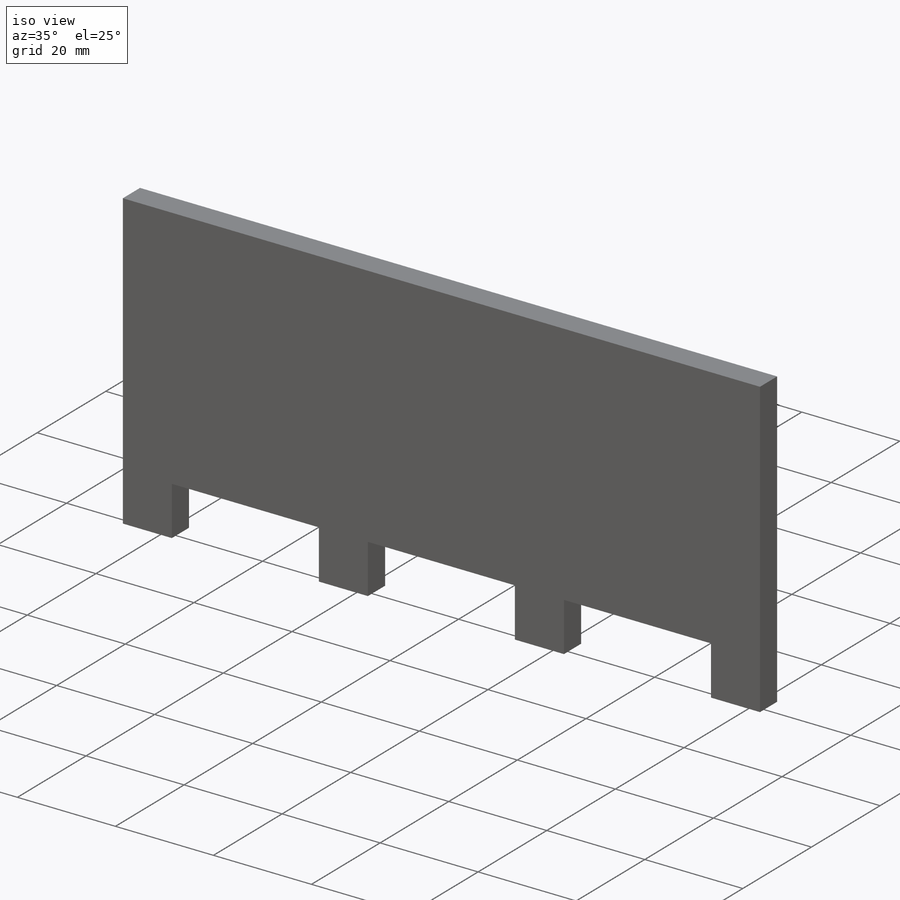
[diagram: iso view]
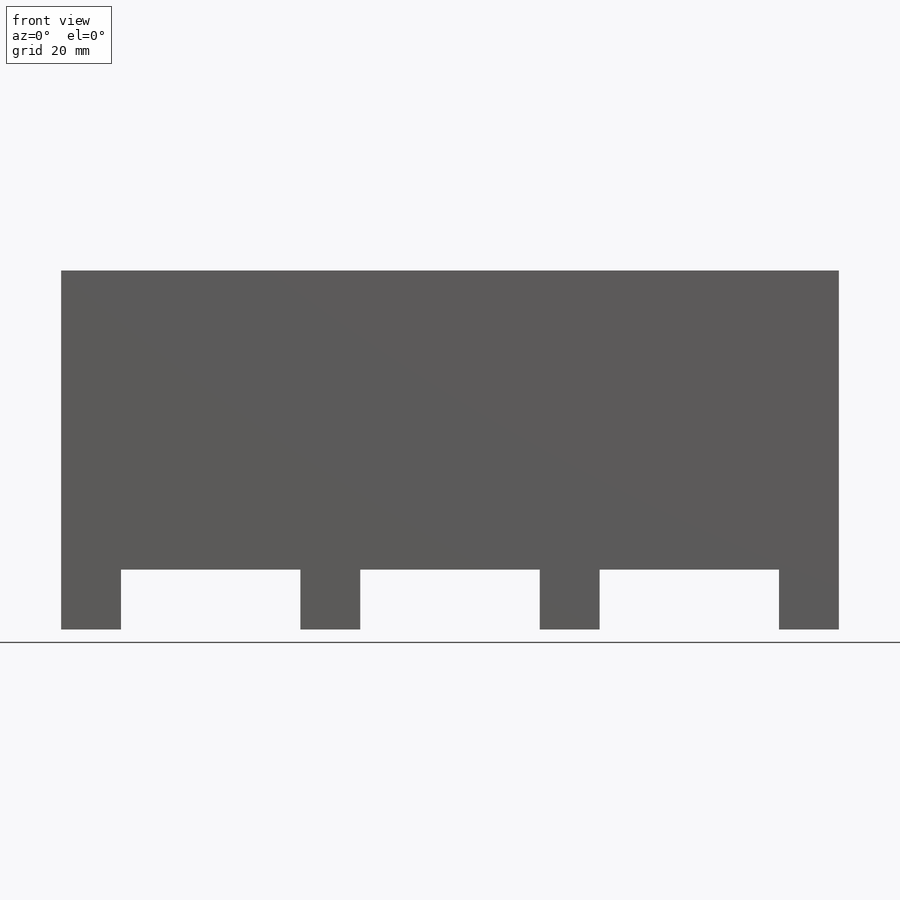
[diagram: front view]
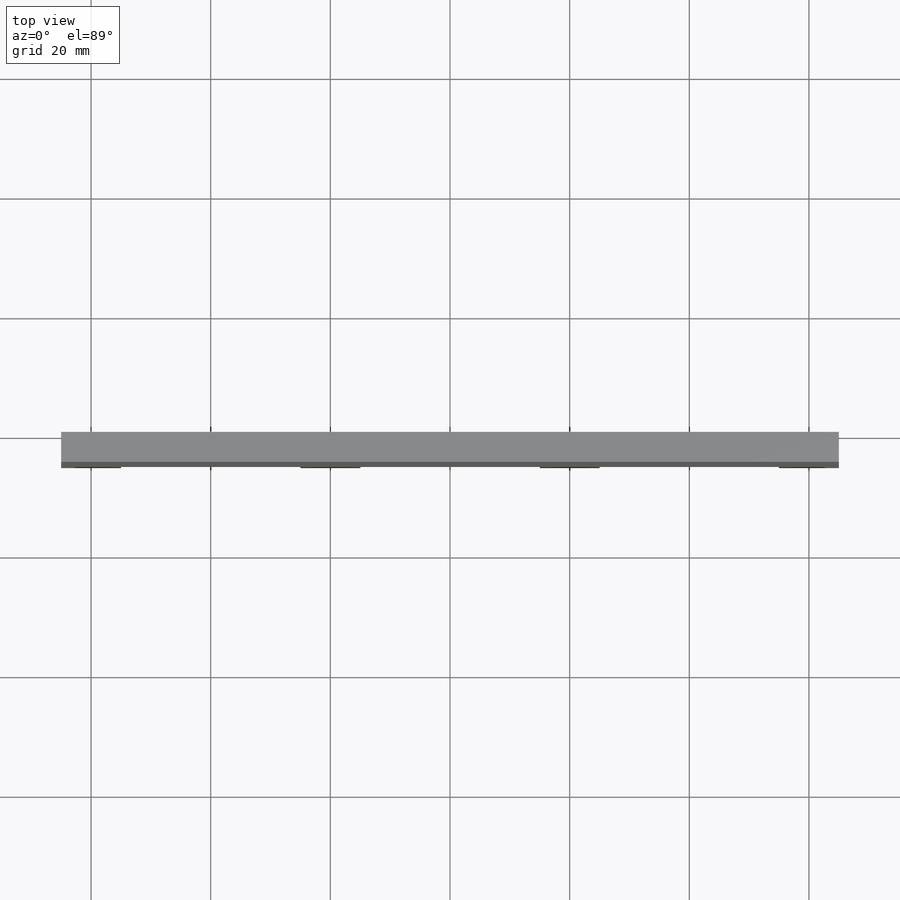
[diagram: top view]
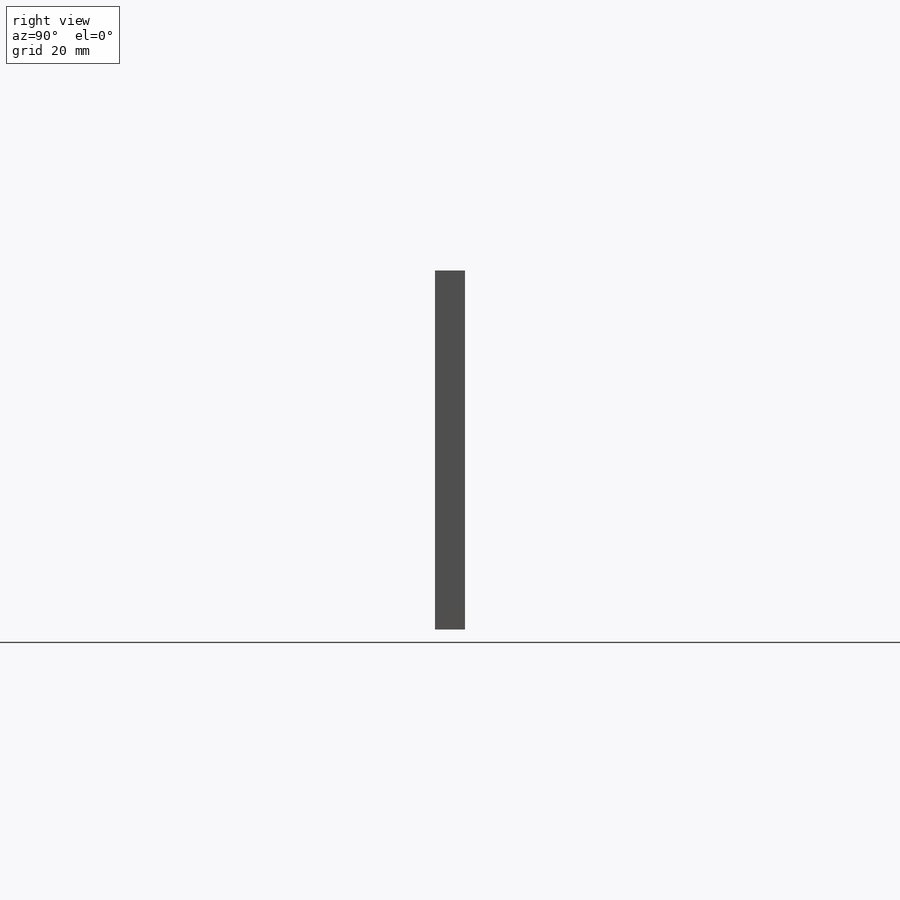
[diagram: right view]
SOLIDWORKS PART (.sldprt)
format: sldprt  version: not decoded by parser v0  size: 284,672 bytes
history: native  units: mm
features: plane x3, sketch x2, extrude x2, material x1, pattern_linear x1 (+10 scaffold rows collapsed)
feature tree (19):
  scaffold x10  (default folders/planes/origin — collapsed)
  material  "Balsa"
  plane  "Plan de face"
  plane  "Plan de dessus"
  plane  "Plan de droite"
  sketch  "Esquisse1"  dims[D1=130.0mm D2=50.0mm D3=65.0mm D4=12.5mm]
  extrude  "Boss.-Extru.1"  Depth=5mm
  sketch  "Esquisse2"  dims[D1=10.0mm D2=10.0mm]
  extrude  "Boss.-Extru.2"  Depth=5mm
  pattern_linear  "Répétition linéaire1"  Count1=4 Count2=1 Spacing1=40mm Spacing2=10mm
decode coverage: 5 of 5 modeling features carry decoded parameters
note: suppression state not decoded; provenance and decode notes live in map.json
